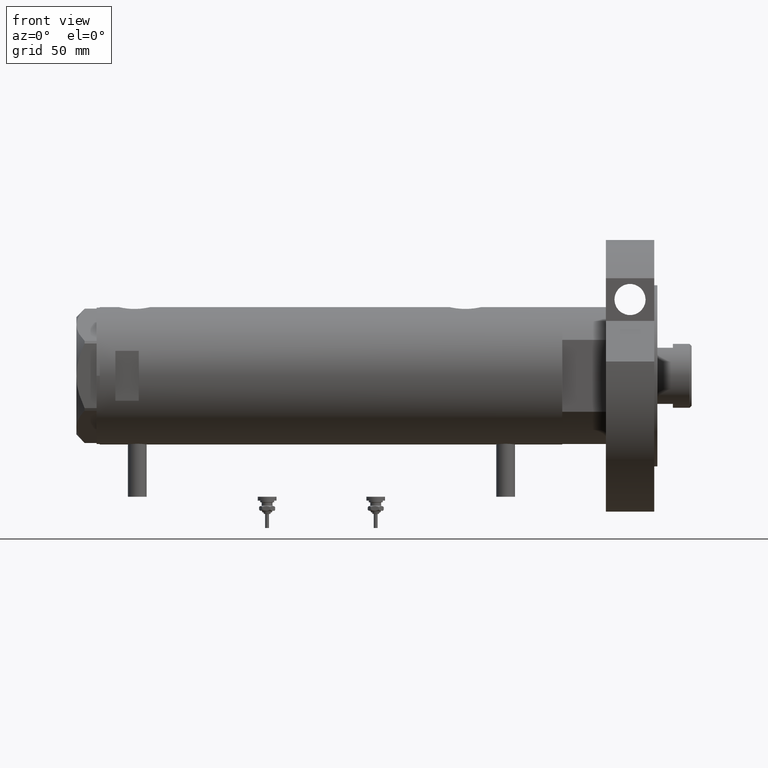
[diagram: clean part render]
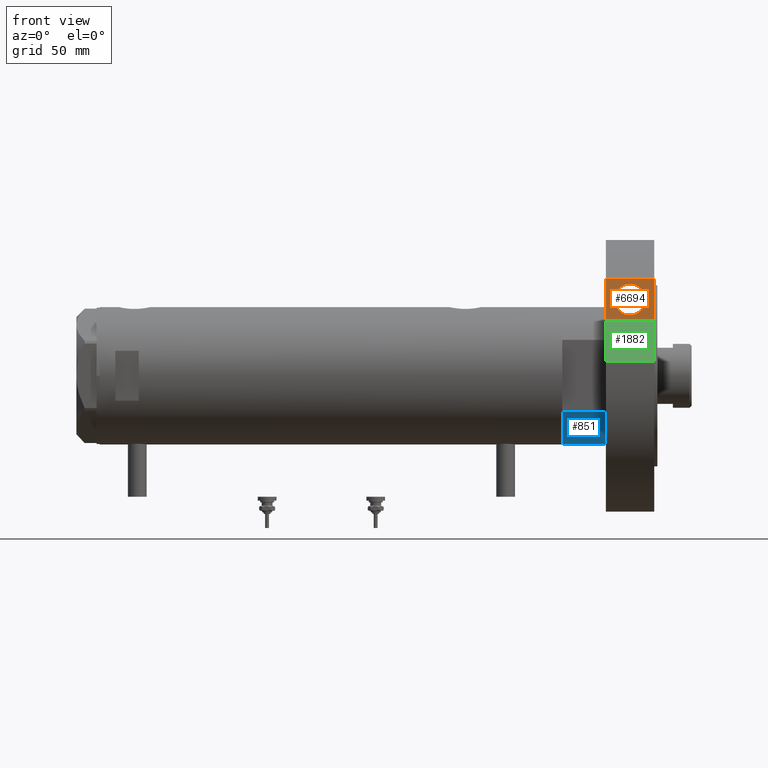
[diagram: same view with three faces highlighted in distinct colors, each labeled with its STEP entity id]
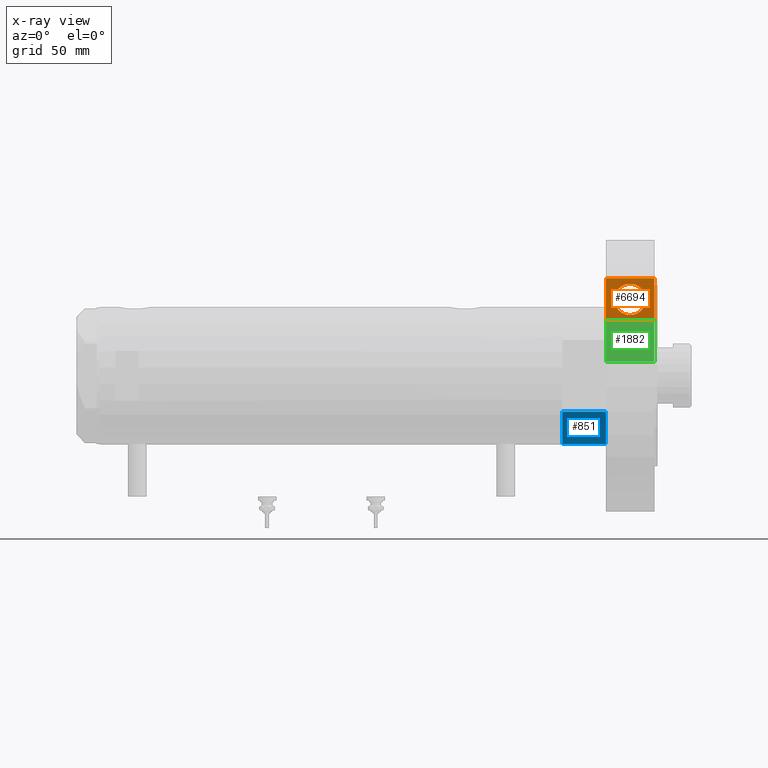
[diagram: x-ray of the same camera — body ghosted, the three highlighted faces saturated]
A machine part, front view with three faces highlighted in distinct colors.
The next image is the same camera in x-ray (body ghosted, the three faces saturated) — at least one of them is partly hidden behind the body in this view.
Their STEP definitions:

[orange] entity #6694 — the highlighted planar face has unit normal (-0, 1, 0).
#6 = CIRCLE ( 'NONE', #7324, 10.00000000000000178 ) ;
#76 = EDGE_CURVE ( 'NONE', #1900, #94, #4559, .T. ) ;
#94 = VERTEX_POINT ( 'NONE', #4599 ) ;
#310 = CIRCLE ( 'NONE', #4827, 10.00000000000000178 ) ;
#329 = ORIENTED_EDGE ( 'NONE', *, *, #4037, .T. ) ;
#463 = EDGE_LOOP ( 'NONE', ( #329, #2534, #4085, #4866 ) ) ;
#636 = CARTESIAN_POINT ( 'NONE',  ( 35.23236590573035443, 60.47687547247904405, 0.000000000000000000 ) ) ;
#942 = EDGE_LOOP ( 'NONE', ( #2954, #3791 ) ) ;
#1162 = VECTOR ( 'NONE', #1230, 1000.000000000000000 ) ;
#1230 = DIRECTION ( 'NONE',  ( 1.000000000000000000, 0.000000000000000000, -0.000000000000000000 ) ) ;
#1283 = LINE ( 'NONE', #4267, #6921 ) ;
#1696 = EDGE_CURVE ( 'NONE', #4464, #6464, #5038, .T. ) ;
#1786 = PLANE ( 'NONE',  #5378 ) ;
#1900 = VERTEX_POINT ( 'NONE', #2395 ) ;
#2060 = CARTESIAN_POINT ( 'NONE',  ( 35.23236590573035443, 60.47687547247904405, 0.000000000000000000 ) ) ;
#2232 = VERTEX_POINT ( 'NONE', #4861 ) ;
#2395 = CARTESIAN_POINT ( 'NONE',  ( 62.54236590573034249, 60.47687547247904405, 0.000000000000000000 ) ) ;
#2534 = ORIENTED_EDGE ( 'NONE', *, *, #76, .F. ) ;
#2703 = VERTEX_POINT ( 'NONE', #4161 ) ;
#2792 = DIRECTION ( 'NONE',  ( 0.000000000000000000, 0.000000000000000000, -1.000000000000000000 ) ) ;
#2954 = ORIENTED_EDGE ( 'NONE', *, *, #5581, .T. ) ;
#3040 = DIRECTION ( 'NONE',  ( 1.000000000000000000, 0.000000000000000000, 0.000000000000000000 ) ) ;
#3452 = VECTOR ( 'NONE', #3859, 1000.000000000000000 ) ;
#3489 = CARTESIAN_POINT ( 'NONE',  ( 0.000000000000000000, 60.47687547247904405, 31.00000000000000000 ) ) ;
#3653 = FACE_BOUND ( 'NONE', #942, .T. ) ;
#3700 = VECTOR ( 'NONE', #6889, 1000.000000000000000 ) ;
#3791 = ORIENTED_EDGE ( 'NONE', *, *, #3799, .T. ) ;
#3799 = EDGE_CURVE ( 'NONE', #2232, #2703, #310, .T. ) ;
#3859 = DIRECTION ( 'NONE',  ( -0.000000000000000000, -0.000000000000000000, 1.000000000000000000 ) ) ;
#4010 = DIRECTION ( 'NONE',  ( 0.000000000000000000, -1.000000000000000000, 0.000000000000000000 ) ) ;
#4037 = EDGE_CURVE ( 'NONE', #6464, #94, #6460, .T. ) ;
#4085 = ORIENTED_EDGE ( 'NONE', *, *, #4871, .F. ) ;
#4112 = DIRECTION ( 'NONE',  ( 0.000000000000000000, -1.000000000000000000, 0.000000000000000000 ) ) ;
#4161 = CARTESIAN_POINT ( 'NONE',  ( 48.88736590573034846, 60.47687547247904405, 25.50000000000000355 ) ) ;
#4267 = CARTESIAN_POINT ( 'NONE',  ( 35.23236590573035443, 60.47687547247904405, 0.000000000000000000 ) ) ;
#4397 = CARTESIAN_POINT ( 'NONE',  ( 35.23236590573035443, 60.47687547247904405, 31.00000000000000000 ) ) ;
#4411 = CARTESIAN_POINT ( 'NONE',  ( 48.88736590573034846, 60.47687547247904405, 15.50000000000000000 ) ) ;
#4464 = VERTEX_POINT ( 'NONE', #5234 ) ;
#4559 = LINE ( 'NONE', #6957, #3700 ) ;
#4599 = CARTESIAN_POINT ( 'NONE',  ( 62.54236590573034249, 60.47687547247904405, 31.00000000000000000 ) ) ;
#4827 = AXIS2_PLACEMENT_3D ( 'NONE', #4411, #6060, #5452 ) ;
#4861 = CARTESIAN_POINT ( 'NONE',  ( 48.88736590573034846, 60.47687547247904405, 5.499999999999998224 ) ) ;
#4866 = ORIENTED_EDGE ( 'NONE', *, *, #1696, .T. ) ;
#4871 = EDGE_CURVE ( 'NONE', #4464, #1900, #1283, .T. ) ;
#5038 = LINE ( 'NONE', #2060, #3452 ) ;
#5234 = CARTESIAN_POINT ( 'NONE',  ( 35.23236590573035443, 60.47687547247904405, 0.000000000000000000 ) ) ;
#5378 = AXIS2_PLACEMENT_3D ( 'NONE', #636, #4112, #6518 ) ;
#5452 = DIRECTION ( 'NONE',  ( 0.000000000000000000, 0.000000000000000000, -1.000000000000000000 ) ) ;
#5581 = EDGE_CURVE ( 'NONE', #2703, #2232, #6, .T. ) ;
#6060 = DIRECTION ( 'NONE',  ( 0.000000000000000000, -1.000000000000000000, 0.000000000000000000 ) ) ;
#6460 = LINE ( 'NONE', #3489, #1162 ) ;
#6464 = VERTEX_POINT ( 'NONE', #4397 ) ;
#6518 = DIRECTION ( 'NONE',  ( 0.000000000000000000, -0.000000000000000000, -1.000000000000000000 ) ) ;
#6555 = FACE_OUTER_BOUND ( 'NONE', #463, .T. ) ;
#6694 = ADVANCED_FACE ( 'NONE', ( #3653, #6555 ), #1786, .F. ) ;
#6884 = CARTESIAN_POINT ( 'NONE',  ( 48.88736590573034846, 60.47687547247904405, 15.50000000000000000 ) ) ;
#6889 = DIRECTION ( 'NONE',  ( -0.000000000000000000, -0.000000000000000000, 1.000000000000000000 ) ) ;
#6921 = VECTOR ( 'NONE', #3040, 1000.000000000000000 ) ;
#6957 = CARTESIAN_POINT ( 'NONE',  ( 62.54236590573034249, 60.47687547247904405, 0.000000000000000000 ) ) ;
#7324 = AXIS2_PLACEMENT_3D ( 'NONE', #6884, #4010, #2792 ) ;

[blue] entity #851 — the highlighted cylindrical surface (partial cylindrical patch) has radius 44 mm, axis along (-1, -0, 0).
#41 = DIRECTION ( 'NONE',  ( -0.000000000000000000, -0.000000000000000000, -1.000000000000000000 ) ) ;
#460 = CARTESIAN_POINT ( 'NONE',  ( 0.000000000000000000, 0.000000000000000000, 0.000000000000000000 ) ) ;
#498 = DIRECTION ( 'NONE',  ( 1.000000000000000000, 0.000000000000000000, 0.000000000000000000 ) ) ;
#588 = VERTEX_POINT ( 'NONE', #883 ) ;
#665 = AXIS2_PLACEMENT_3D ( 'NONE', #2906, #41, #5278 ) ;
#666 = ORIENTED_EDGE ( 'NONE', *, *, #5520, .T. ) ;
#738 = LINE ( 'NONE', #3069, #4681 ) ;
#748 = VERTEX_POINT ( 'NONE', #7489 ) ;
#851 = ADVANCED_FACE ( 'NONE', ( #1035 ), #5235, .T. ) ;
#883 = CARTESIAN_POINT ( 'NONE',  ( 23.01629857296780557, -37.50000000000000000, 27.89999999999999858 ) ) ;
#1035 = FACE_OUTER_BOUND ( 'NONE', #2091, .T. ) ;
#1095 = AXIS2_PLACEMENT_3D ( 'NONE', #7543, #2714, #1706 ) ;
#1611 = DIRECTION ( 'NONE',  ( 0.000000000000000000, 0.000000000000000000, 1.000000000000000000 ) ) ;
#1706 = DIRECTION ( 'NONE',  ( 1.000000000000000000, 0.000000000000000000, 0.000000000000000000 ) ) ;
#1714 = CARTESIAN_POINT ( 'NONE',  ( 23.01629857296780557, 37.50000000000000000, 0.000000000000000000 ) ) ;
#2091 = EDGE_LOOP ( 'NONE', ( #2684, #5030, #666, #5036 ) ) ;
#2300 = EDGE_CURVE ( 'NONE', #748, #588, #738, .T. ) ;
#2684 = ORIENTED_EDGE ( 'NONE', *, *, #6457, .F. ) ;
#2686 = EDGE_CURVE ( 'NONE', #6240, #6933, #4813, .T. ) ;
#2714 = DIRECTION ( 'NONE',  ( 0.000000000000000000, 0.000000000000000000, 1.000000000000000000 ) ) ;
#2906 = CARTESIAN_POINT ( 'NONE',  ( 0.000000000000000000, 0.000000000000000000, 27.89999999999999858 ) ) ;
#3069 = CARTESIAN_POINT ( 'NONE',  ( 23.01629857296780557, -37.50000000000000000, 0.000000000000000000 ) ) ;
#3423 = CIRCLE ( 'NONE', #3673, 44.00000000000000000 ) ;
#3673 = AXIS2_PLACEMENT_3D ( 'NONE', #460, #1611, #498 ) ;
#4243 = DIRECTION ( 'NONE',  ( -0.000000000000000000, -0.000000000000000000, 1.000000000000000000 ) ) ;
#4394 = CIRCLE ( 'NONE', #1095, 44.00000000000000000 ) ;
#4681 = VECTOR ( 'NONE', #5402, 1000.000000000000000 ) ;
#4813 = LINE ( 'NONE', #5999, #6390 ) ;
#5030 = ORIENTED_EDGE ( 'NONE', *, *, #2300, .F. ) ;
#5036 = ORIENTED_EDGE ( 'NONE', *, *, #2686, .T. ) ;
#5235 = CYLINDRICAL_SURFACE ( 'NONE', #665, 44.00000000000000000 ) ;
#5278 = DIRECTION ( 'NONE',  ( -1.000000000000000000, 0.000000000000000000, 0.000000000000000000 ) ) ;
#5402 = DIRECTION ( 'NONE',  ( -0.000000000000000000, -0.000000000000000000, 1.000000000000000000 ) ) ;
#5520 = EDGE_CURVE ( 'NONE', #748, #6240, #3423, .T. ) ;
#5639 = CARTESIAN_POINT ( 'NONE',  ( 23.01629857296780557, 37.50000000000000000, 27.89999999999999858 ) ) ;
#5999 = CARTESIAN_POINT ( 'NONE',  ( 23.01629857296780557, 37.50000000000000000, 0.000000000000000000 ) ) ;
#6240 = VERTEX_POINT ( 'NONE', #1714 ) ;
#6390 = VECTOR ( 'NONE', #4243, 1000.000000000000000 ) ;
#6457 = EDGE_CURVE ( 'NONE', #588, #6933, #4394, .T. ) ;
#6933 = VERTEX_POINT ( 'NONE', #5639 ) ;
#7489 = CARTESIAN_POINT ( 'NONE',  ( 23.01629857296780557, -37.50000000000000000, 0.000000000000000000 ) ) ;
#7543 = CARTESIAN_POINT ( 'NONE',  ( 0.000000000000000000, 0.000000000000000000, 27.89999999999999858 ) ) ;

[green] entity #1882 — the highlighted planar face has unit normal (-0, 0.7071, -0.7071).
#139 = VECTOR ( 'NONE', #6892, 1000.000000000000000 ) ;
#449 = VERTEX_POINT ( 'NONE', #7028 ) ;
#600 = FACE_OUTER_BOUND ( 'NONE', #1328, .T. ) ;
#861 = EDGE_CURVE ( 'NONE', #449, #4464, #1765, .T. ) ;
#1328 = EDGE_LOOP ( 'NONE', ( #5482, #6887, #4844, #4789 ) ) ;
#1418 = CARTESIAN_POINT ( 'NONE',  ( 47.85462068910451450, 47.85462068910500477, 31.00000000000000000 ) ) ;
#1696 = EDGE_CURVE ( 'NONE', #4464, #6464, #5038, .T. ) ;
#1765 = LINE ( 'NONE', #2371, #3715 ) ;
#1879 = DIRECTION ( 'NONE',  ( 0.7071067811865511255, -0.7071067811865440200, -0.000000000000000000 ) ) ;
#1882 = ADVANCED_FACE ( 'NONE', ( #600 ), #5111, .F. ) ;
#2060 = CARTESIAN_POINT ( 'NONE',  ( 35.23236590573035443, 60.47687547247904405, 0.000000000000000000 ) ) ;
#2242 = CARTESIAN_POINT ( 'NONE',  ( 35.23236590573035443, 60.47687547247904405, 0.000000000000000000 ) ) ;
#2371 = CARTESIAN_POINT ( 'NONE',  ( 35.23236590573035443, 60.47687547247904405, 0.000000000000000000 ) ) ;
#2682 = VECTOR ( 'NONE', #4360, 999.9999999999998863 ) ;
#3378 = CARTESIAN_POINT ( 'NONE',  ( 9.196694222441541555, 86.51254715576759224, 0.000000000000000000 ) ) ;
#3452 = VECTOR ( 'NONE', #3859, 1000.000000000000000 ) ;
#3715 = VECTOR ( 'NONE', #1879, 999.9999999999998863 ) ;
#3859 = DIRECTION ( 'NONE',  ( -0.000000000000000000, -0.000000000000000000, 1.000000000000000000 ) ) ;
#4360 = DIRECTION ( 'NONE',  ( 0.7071067811865511255, -0.7071067811865440200, 0.000000000000000000 ) ) ;
#4397 = CARTESIAN_POINT ( 'NONE',  ( 35.23236590573035443, 60.47687547247904405, 31.00000000000000000 ) ) ;
#4464 = VERTEX_POINT ( 'NONE', #5234 ) ;
#4562 = LINE ( 'NONE', #3378, #139 ) ;
#4583 = DIRECTION ( 'NONE',  ( -0.7071067811865440200, -0.7071067811865511255, 0.000000000000000000 ) ) ;
#4789 = ORIENTED_EDGE ( 'NONE', *, *, #7272, .T. ) ;
#4844 = ORIENTED_EDGE ( 'NONE', *, *, #861, .F. ) ;
#5038 = LINE ( 'NONE', #2060, #3452 ) ;
#5111 = PLANE ( 'NONE',  #5415 ) ;
#5234 = CARTESIAN_POINT ( 'NONE',  ( 35.23236590573035443, 60.47687547247904405, 0.000000000000000000 ) ) ;
#5415 = AXIS2_PLACEMENT_3D ( 'NONE', #2242, #4583, #6906 ) ;
#5482 = ORIENTED_EDGE ( 'NONE', *, *, #5995, .T. ) ;
#5995 = EDGE_CURVE ( 'NONE', #6771, #6464, #6570, .T. ) ;
#6464 = VERTEX_POINT ( 'NONE', #4397 ) ;
#6570 = LINE ( 'NONE', #1418, #2682 ) ;
#6632 = CARTESIAN_POINT ( 'NONE',  ( 9.196694222441541555, 86.51254715576759224, 31.00000000000000000 ) ) ;
#6771 = VERTEX_POINT ( 'NONE', #6632 ) ;
#6887 = ORIENTED_EDGE ( 'NONE', *, *, #1696, .F. ) ;
#6892 = DIRECTION ( 'NONE',  ( -0.000000000000000000, -0.000000000000000000, 1.000000000000000000 ) ) ;
#6906 = DIRECTION ( 'NONE',  ( 0.7071067811865511255, -0.7071067811865440200, 0.000000000000000000 ) ) ;
#7028 = CARTESIAN_POINT ( 'NONE',  ( 9.196694222441541555, 86.51254715576759224, 0.000000000000000000 ) ) ;
#7272 = EDGE_CURVE ( 'NONE', #449, #6771, #4562, .T. ) ;